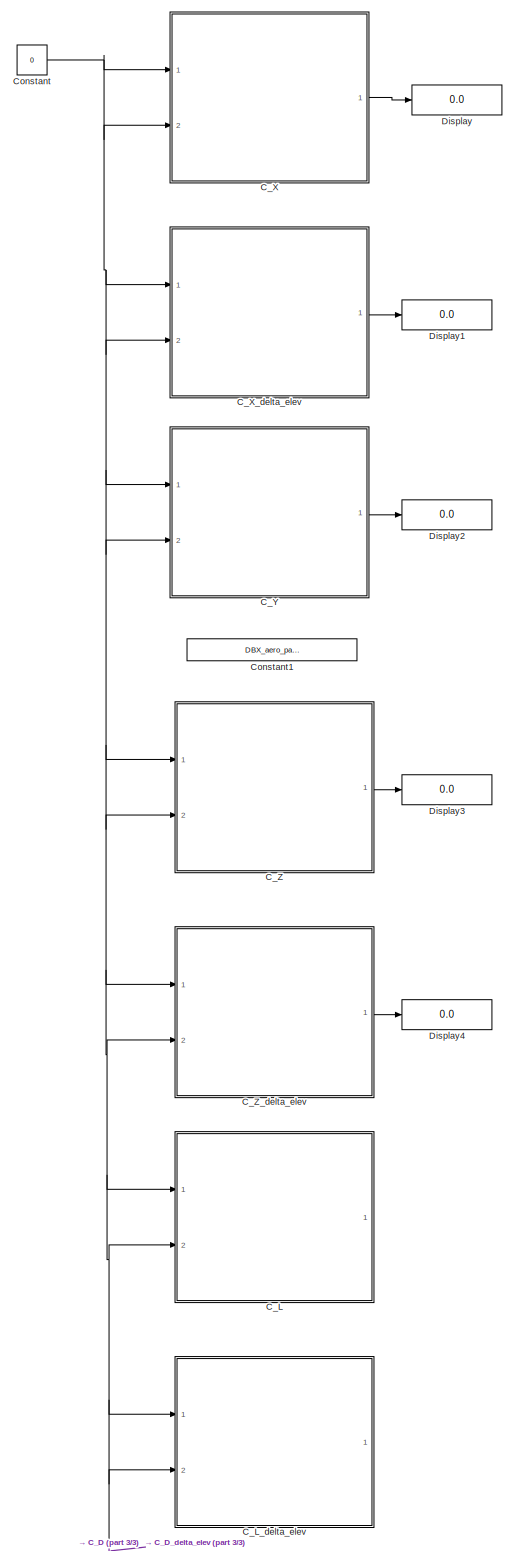
[diagram: root canvas - part 1/3, left side, full height]
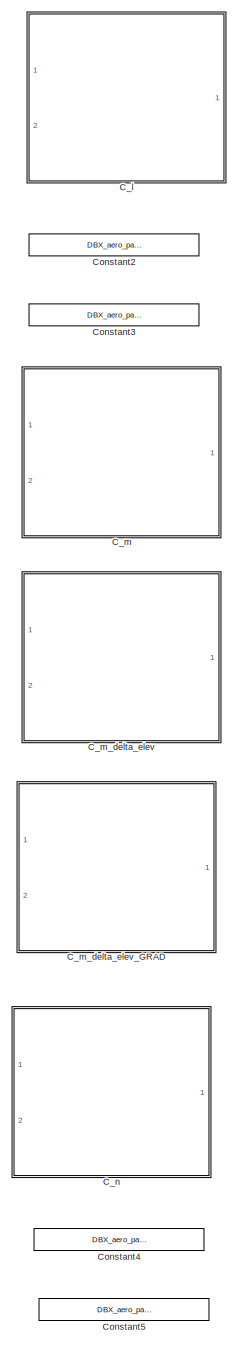
[diagram: root canvas - part 2/3, middle right region]
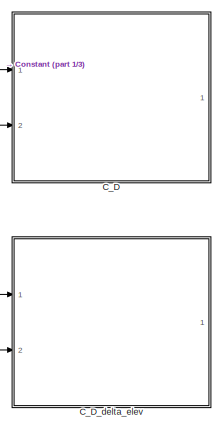
[diagram: root canvas - part 3/3, bottom left region]
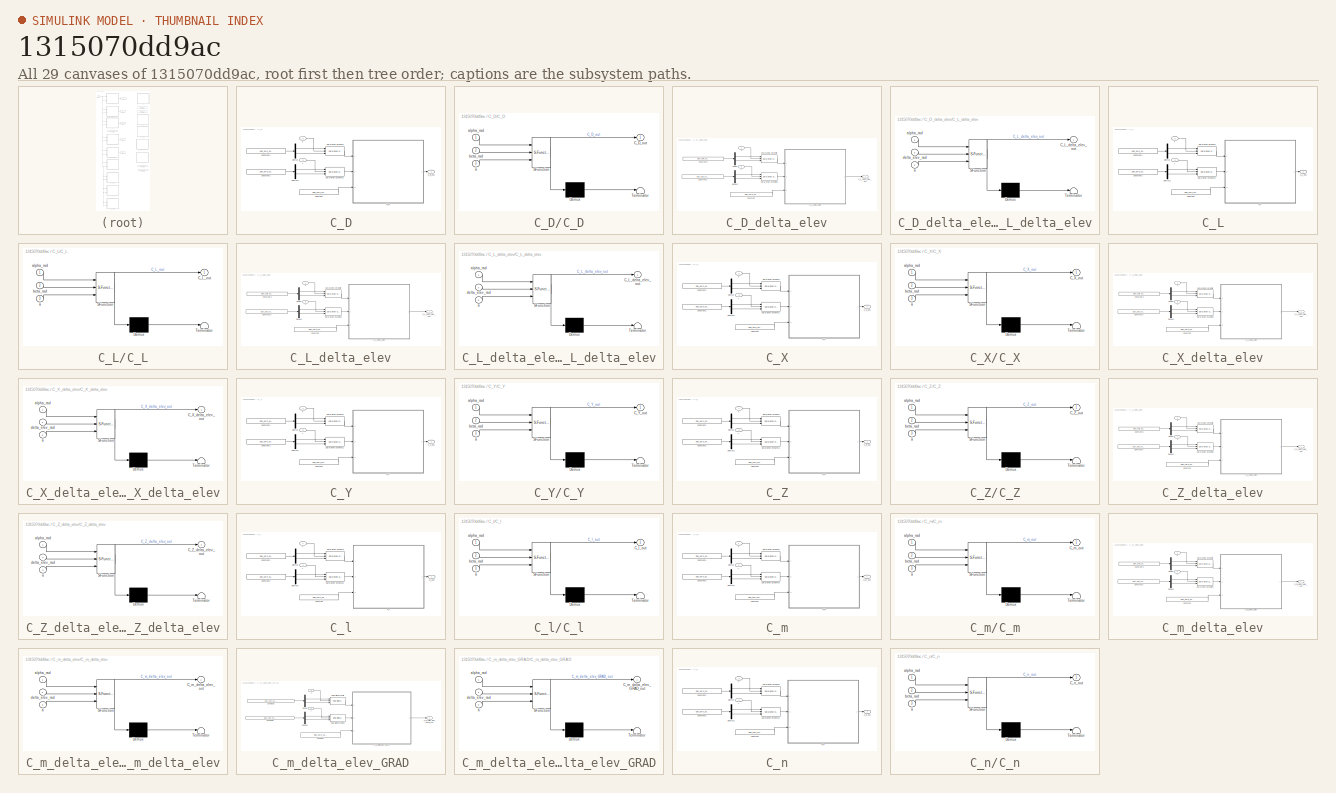
[diagram: thumbnail index - all 29 canvases of the model, root first then tree order]
MODEL slx_1315070dd9ac
KIND model
CONFIG AbsTol = auto
CONFIG FixedStep = auto
CONFIG MaxStep = auto
CONFIG MinStep = auto
CONFIG RelTol = 1e-3
CONFIG SampleTimeConstraint = Unconstrained
CONFIG Solver = ode45
CONFIG SolverMode = Auto
CONFIG SolverName = ode45
CONFIG StartTime = 0.0
CONFIG StopTime = 10.0
BLOCK [SubSystem] C_D
  Ports = [2, 1]
  RequestExecContextInheritance = off
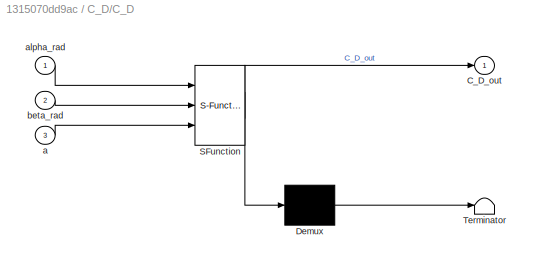
BLOCK [SubSystem] C_D/C_D
  ErrorFcn = Stateflow.Translate.translate
  PermitHierarchicalResolution = ExplicitOnly
  Ports = [3, 1]
  RequestExecContextInheritance = off
  SFBlockType = MATLAB Function
BLOCK [Demux] C_D/C_D/ Demux 
  Outputs = 1
  Ports = [1, 1]
BLOCK [S-Function] C_D/C_D/ SFunction 
  EnableBusSupport = on
  FunctionName = sf_sfun
  PortCounts = [3 2]
  Ports = [3, 2]
  Tag = Stateflow S-Function DBX_aero_parametric 8
BLOCK [Terminator] C_D/C_D/ Terminator 
BLOCK [Outport] C_D/C_D/C_D_out
  IconDisplay = Port number
BLOCK [Inport] C_D/C_D/a
  IconDisplay = Port number
  Port = 3
BLOCK [Inport] C_D/C_D/alpha_rad
  IconDisplay = Port number
BLOCK [Inport] C_D/C_D/beta_rad
  IconDisplay = Port number
  Port = 2
BLOCK [Outport] C_D/C_D_out
  IconDisplay = Port number
BLOCK [Constant] C_D/Constant
  Value = DBX_aero_param.C_D.a
BLOCK [Constant] C_D/Constant1
  Value = DBX_aero_param.C_D.x_lim
BLOCK [Constant] C_D/Constant2
  Value = DBX_aero_param.C_D.y_lim
BLOCK [Demux] C_D/Demux
  DisplayOption = bar
  Outputs = 2
  Ports = [1, 2]
BLOCK [Demux] C_D/Demux1
  DisplayOption = bar
  Outputs = 2
  Ports = [1, 2]
BLOCK [Reference] C_D/Saturation Dynamic  REF=simulink/Discontinuities/Saturation
Dynamic
  DoSatur = off
  LockScale = off
  OutDataType = fixdt(1, 16)
  OutDataTypeStr = Inherit: Same as second input
  OutMax = []
  OutMin = []
  OutScaling = 2^-10
  OutputDataTypeScalingMode = Same as second input
  Ports = [3, 1]
  RndMeth = Floor
  SourceBlock = simulink/Discontinuities/Saturation\nDynamic
  SourceType = Saturation Dynamic
BLOCK [Reference] C_D/Saturation Dynamic1  REF=simulink/Discontinuities/Saturation
Dynamic
  DoSatur = off
  LockScale = off
  OutDataType = fixdt(1, 16)
  OutDataTypeStr = Inherit: Same as second input
  OutMax = []
  OutMin = []
  OutScaling = 2^-10
  OutputDataTypeScalingMode = Same as second input
  Ports = [3, 1]
  RndMeth = Floor
  SourceBlock = simulink/Discontinuities/Saturation\nDynamic
  SourceType = Saturation Dynamic
BLOCK [Inport] C_D/x
  IconDisplay = Port number
BLOCK [Inport] C_D/y
  IconDisplay = Port number
  Port = 2
BLOCK [SubSystem] C_D_delta_elev
  Ports = [2, 1]
  RequestExecContextInheritance = off
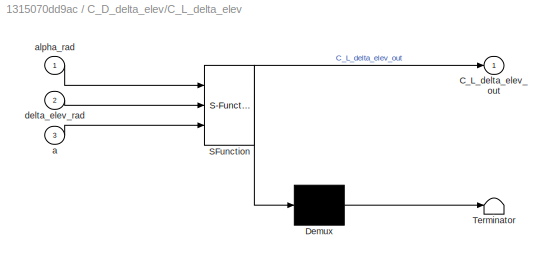
BLOCK [SubSystem] C_D_delta_elev/C_L_delta_elev
  ErrorFcn = Stateflow.Translate.translate
  PermitHierarchicalResolution = ExplicitOnly
  Ports = [3, 1]
  RequestExecContextInheritance = off
  SFBlockType = MATLAB Function
BLOCK [Demux] C_D_delta_elev/C_L_delta_elev/ Demux 
  Outputs = 1
  Ports = [1, 1]
BLOCK [S-Function] C_D_delta_elev/C_L_delta_elev/ SFunction 
  EnableBusSupport = on
  FunctionName = sf_sfun
  PortCounts = [3 2]
  Ports = [3, 2]
  Tag = Stateflow S-Function DBX_aero_parametric 9
BLOCK [Terminator] C_D_delta_elev/C_L_delta_elev/ Terminator 
BLOCK [Outport] C_D_delta_elev/C_L_delta_elev/C_L_delta_elev_out
  IconDisplay = Port number
BLOCK [Inport] C_D_delta_elev/C_L_delta_elev/a
  IconDisplay = Port number
  Port = 3
BLOCK [Inport] C_D_delta_elev/C_L_delta_elev/alpha_rad
  IconDisplay = Port number
BLOCK [Inport] C_D_delta_elev/C_L_delta_elev/delta_elev_rad
  IconDisplay = Port number
  Port = 2
BLOCK [Outport] C_D_delta_elev/C_L_delta_elev_out
  IconDisplay = Port number
BLOCK [Constant] C_D_delta_elev/Constant
  Value = DBX_aero_param.C_L_delta_elev.a
BLOCK [Constant] C_D_delta_elev/Constant1
  Value = DBX_aero_param.C_L_delta_elev.x_lim
BLOCK [Constant] C_D_delta_elev/Constant2
  Value = DBX_aero_param.C_L_delta_elev.y_lim
BLOCK [Demux] C_D_delta_elev/Demux
  DisplayOption = bar
  Outputs = 2
  Ports = [1, 2]
BLOCK [Demux] C_D_delta_elev/Demux1
  DisplayOption = bar
  Outputs = 2
  Ports = [1, 2]
BLOCK [Reference] C_D_delta_elev/Saturation Dynamic  REF=simulink/Discontinuities/Saturation
Dynamic
  DoSatur = off
  LockScale = off
  OutDataType = fixdt(1, 16)
  OutDataTypeStr = Inherit: Same as second input
  OutMax = []
  OutMin = []
  OutScaling = 2^-10
  OutputDataTypeScalingMode = Same as second input
  Ports = [3, 1]
  RndMeth = Floor
  SourceBlock = simulink/Discontinuities/Saturation\nDynamic
  SourceType = Saturation Dynamic
BLOCK [Reference] C_D_delta_elev/Saturation Dynamic1  REF=simulink/Discontinuities/Saturation
Dynamic
  DoSatur = off
  LockScale = off
  OutDataType = fixdt(1, 16)
  OutDataTypeStr = Inherit: Same as second input
  OutMax = []
  OutMin = []
  OutScaling = 2^-10
  OutputDataTypeScalingMode = Same as second input
  Ports = [3, 1]
  RndMeth = Floor
  SourceBlock = simulink/Discontinuities/Saturation\nDynamic
  SourceType = Saturation Dynamic
BLOCK [Inport] C_D_delta_elev/x
  IconDisplay = Port number
BLOCK [Inport] C_D_delta_elev/y
  IconDisplay = Port number
  Port = 2
BLOCK [SubSystem] C_L
  Ports = [2, 1]
  RequestExecContextInheritance = off
BLOCK [SubSystem] C_L/C_L
  ErrorFcn = Stateflow.Translate.translate
  PermitHierarchicalResolution = ExplicitOnly
  Ports = [3, 1]
  RequestExecContextInheritance = off
  SFBlockType = MATLAB Function
BLOCK [Demux] C_L/C_L/ Demux 
  Outputs = 1
  Ports = [1, 1]
BLOCK [S-Function] C_L/C_L/ SFunction 
  EnableBusSupport = on
  FunctionName = sf_sfun
  PortCounts = [3 2]
  Ports = [3, 2]
  Tag = Stateflow S-Function DBX_aero_parametric 6
BLOCK [Terminator] C_L/C_L/ Terminator 
BLOCK [Outport] C_L/C_L/C_L_out
  IconDisplay = Port number
BLOCK [Inport] C_L/C_L/a
  IconDisplay = Port number
  Port = 3
BLOCK [Inport] C_L/C_L/alpha_rad
  IconDisplay = Port number
BLOCK [Inport] C_L/C_L/beta_rad
  IconDisplay = Port number
  Port = 2
BLOCK [Outport] C_L/C_L_out
  IconDisplay = Port number
BLOCK [Constant] C_L/Constant
  Value = DBX_aero_param.C_L.a
BLOCK [Constant] C_L/Constant1
  Value = DBX_aero_param.C_L.x_lim
BLOCK [Constant] C_L/Constant2
  Value = DBX_aero_param.C_L.y_lim
BLOCK [Demux] C_L/Demux
  DisplayOption = bar
  Outputs = 2
  Ports = [1, 2]
BLOCK [Demux] C_L/Demux1
  DisplayOption = bar
  Outputs = 2
  Ports = [1, 2]
BLOCK [Reference] C_L/Saturation Dynamic  REF=simulink/Discontinuities/Saturation
Dynamic
  DoSatur = off
  LockScale = off
  OutDataType = fixdt(1, 16)
  OutDataTypeStr = Inherit: Same as second input
  OutMax = []
  OutMin = []
  OutScaling = 2^-10
  OutputDataTypeScalingMode = Same as second input
  Ports = [3, 1]
  RndMeth = Floor
  SourceBlock = simulink/Discontinuities/Saturation\nDynamic
  SourceType = Saturation Dynamic
BLOCK [Reference] C_L/Saturation Dynamic1  REF=simulink/Discontinuities/Saturation
Dynamic
  DoSatur = off
  LockScale = off
  OutDataType = fixdt(1, 16)
  OutDataTypeStr = Inherit: Same as second input
  OutMax = []
  OutMin = []
  OutScaling = 2^-10
  OutputDataTypeScalingMode = Same as second input
  Ports = [3, 1]
  RndMeth = Floor
  SourceBlock = simulink/Discontinuities/Saturation\nDynamic
  SourceType = Saturation Dynamic
BLOCK [Inport] C_L/x
  IconDisplay = Port number
BLOCK [Inport] C_L/y
  IconDisplay = Port number
  Port = 2
BLOCK [SubSystem] C_L_delta_elev
  Ports = [2, 1]
  RequestExecContextInheritance = off
BLOCK [SubSystem] C_L_delta_elev/C_L_delta_elev
  ErrorFcn = Stateflow.Translate.translate
  PermitHierarchicalResolution = ExplicitOnly
  Ports = [3, 1]
  RequestExecContextInheritance = off
  SFBlockType = MATLAB Function
BLOCK [Demux] C_L_delta_elev/C_L_delta_elev/ Demux 
  Outputs = 1
  Ports = [1, 1]
BLOCK [S-Function] C_L_delta_elev/C_L_delta_elev/ SFunction 
  EnableBusSupport = on
  FunctionName = sf_sfun
  PortCounts = [3 2]
  Ports = [3, 2]
  Tag = Stateflow S-Function DBX_aero_parametric 7
BLOCK [Terminator] C_L_delta_elev/C_L_delta_elev/ Terminator 
BLOCK [Outport] C_L_delta_elev/C_L_delta_elev/C_L_delta_elev_out
  IconDisplay = Port number
BLOCK [Inport] C_L_delta_elev/C_L_delta_elev/a
  IconDisplay = Port number
  Port = 3
BLOCK [Inport] C_L_delta_elev/C_L_delta_elev/alpha_rad
  IconDisplay = Port number
BLOCK [Inport] C_L_delta_elev/C_L_delta_elev/delta_elev_rad
  IconDisplay = Port number
  Port = 2
BLOCK [Outport] C_L_delta_elev/C_L_delta_elev_out
  IconDisplay = Port number
BLOCK [Constant] C_L_delta_elev/Constant
  Value = DBX_aero_param.C_L_delta_elev.a
BLOCK [Constant] C_L_delta_elev/Constant1
  Value = DBX_aero_param.C_L_delta_elev.x_lim
BLOCK [Constant] C_L_delta_elev/Constant2
  Value = DBX_aero_param.C_L_delta_elev.y_lim
BLOCK [Demux] C_L_delta_elev/Demux
  DisplayOption = bar
  Outputs = 2
  Ports = [1, 2]
BLOCK [Demux] C_L_delta_elev/Demux1
  DisplayOption = bar
  Outputs = 2
  Ports = [1, 2]
BLOCK [Reference] C_L_delta_elev/Saturation Dynamic  REF=simulink/Discontinuities/Saturation
Dynamic
  DoSatur = off
  LockScale = off
  OutDataType = fixdt(1, 16)
  OutDataTypeStr = Inherit: Same as second input
  OutMax = []
  OutMin = []
  OutScaling = 2^-10
  OutputDataTypeScalingMode = Same as second input
  Ports = [3, 1]
  RndMeth = Floor
  SourceBlock = simulink/Discontinuities/Saturation\nDynamic
  SourceType = Saturation Dynamic
BLOCK [Reference] C_L_delta_elev/Saturation Dynamic1  REF=simulink/Discontinuities/Saturation
Dynamic
  DoSatur = off
  LockScale = off
  OutDataType = fixdt(1, 16)
  OutDataTypeStr = Inherit: Same as second input
  OutMax = []
  OutMin = []
  OutScaling = 2^-10
  OutputDataTypeScalingMode = Same as second input
  Ports = [3, 1]
  RndMeth = Floor
  SourceBlock = simulink/Discontinuities/Saturation\nDynamic
  SourceType = Saturation Dynamic
BLOCK [Inport] C_L_delta_elev/x
  IconDisplay = Port number
BLOCK [Inport] C_L_delta_elev/y
  IconDisplay = Port number
  Port = 2
BLOCK [SubSystem] C_X
  Ports = [2, 1]
  RequestExecContextInheritance = off
BLOCK [SubSystem] C_X/C_X
  ErrorFcn = Stateflow.Translate.translate
  PermitHierarchicalResolution = ExplicitOnly
  Ports = [3, 1]
  RequestExecContextInheritance = off
  SFBlockType = MATLAB Function
BLOCK [Demux] C_X/C_X/ Demux 
  Outputs = 1
  Ports = [1, 1]
BLOCK [S-Function] C_X/C_X/ SFunction 
  EnableBusSupport = on
  FunctionName = sf_sfun
  PortCounts = [3 2]
  Ports = [3, 2]
  Tag = Stateflow S-Function DBX_aero_parametric 2
BLOCK [Terminator] C_X/C_X/ Terminator 
BLOCK [Outport] C_X/C_X/C_X_out
  IconDisplay = Port number
BLOCK [Inport] C_X/C_X/a
  IconDisplay = Port number
  Port = 3
BLOCK [Inport] C_X/C_X/alpha_rad
  IconDisplay = Port number
BLOCK [Inport] C_X/C_X/beta_rad
  IconDisplay = Port number
  Port = 2
BLOCK [Outport] C_X/C_X_out
  IconDisplay = Port number
BLOCK [Constant] C_X/Constant
  Value = DBX_aero_param.C_X.a
BLOCK [Constant] C_X/Constant1
  Value = DBX_aero_param.C_X.x_lim
BLOCK [Constant] C_X/Constant2
  Value = DBX_aero_param.C_X.y_lim
BLOCK [Demux] C_X/Demux
  DisplayOption = bar
  Outputs = 2
  Ports = [1, 2]
BLOCK [Demux] C_X/Demux1
  DisplayOption = bar
  Outputs = 2
  Ports = [1, 2]
BLOCK [Reference] C_X/Saturation Dynamic  REF=simulink/Discontinuities/Saturation
Dynamic
  DoSatur = off
  LockScale = off
  OutDataType = fixdt(1, 16)
  OutDataTypeStr = Inherit: Same as second input
  OutMax = []
  OutMin = []
  OutScaling = 2^-10
  OutputDataTypeScalingMode = Same as second input
  Ports = [3, 1]
  RndMeth = Floor
  SourceBlock = simulink/Discontinuities/Saturation\nDynamic
  SourceType = Saturation Dynamic
BLOCK [Reference] C_X/Saturation Dynamic1  REF=simulink/Discontinuities/Saturation
Dynamic
  DoSatur = off
  LockScale = off
  OutDataType = fixdt(1, 16)
  OutDataTypeStr = Inherit: Same as second input
  OutMax = []
  OutMin = []
  OutScaling = 2^-10
  OutputDataTypeScalingMode = Same as second input
  Ports = [3, 1]
  RndMeth = Floor
  SourceBlock = simulink/Discontinuities/Saturation\nDynamic
  SourceType = Saturation Dynamic
BLOCK [Inport] C_X/x
  IconDisplay = Port number
BLOCK [Inport] C_X/y
  IconDisplay = Port number
  Port = 2
BLOCK [SubSystem] C_X_delta_elev
  Ports = [2, 1]
  RequestExecContextInheritance = off
BLOCK [SubSystem] C_X_delta_elev/C_X_delta_elev
  ErrorFcn = Stateflow.Translate.translate
  PermitHierarchicalResolution = ExplicitOnly
  Ports = [3, 1]
  RequestExecContextInheritance = off
  SFBlockType = MATLAB Function
BLOCK [Demux] C_X_delta_elev/C_X_delta_elev/ Demux 
  Outputs = 1
  Ports = [1, 1]
BLOCK [S-Function] C_X_delta_elev/C_X_delta_elev/ SFunction 
  EnableBusSupport = on
  FunctionName = sf_sfun
  PortCounts = [3 2]
  Ports = [3, 2]
  Tag = Stateflow S-Function DBX_aero_parametric 1
BLOCK [Terminator] C_X_delta_elev/C_X_delta_elev/ Terminator 
BLOCK [Outport] C_X_delta_elev/C_X_delta_elev/C_X_delta_elev_out
  IconDisplay = Port number
BLOCK [Inport] C_X_delta_elev/C_X_delta_elev/a
  IconDisplay = Port number
  Port = 3
BLOCK [Inport] C_X_delta_elev/C_X_delta_elev/alpha_rad
  IconDisplay = Port number
BLOCK [Inport] C_X_delta_elev/C_X_delta_elev/delta_elev_rad
  IconDisplay = Port number
  Port = 2
BLOCK [Outport] C_X_delta_elev/C_X_delta_elev_out
  IconDisplay = Port number
BLOCK [Constant] C_X_delta_elev/Constant
  Value = DBX_aero_param.C_X_delta_elev.a
BLOCK [Constant] C_X_delta_elev/Constant1
  Value = DBX_aero_param.C_X_delta_elev.x_lim
BLOCK [Constant] C_X_delta_elev/Constant2
  Value = DBX_aero_param.C_X_delta_elev.y_lim
BLOCK [Demux] C_X_delta_elev/Demux
  DisplayOption = bar
  Outputs = 2
  Ports = [1, 2]
BLOCK [Demux] C_X_delta_elev/Demux1
  DisplayOption = bar
  Outputs = 2
  Ports = [1, 2]
BLOCK [Reference] C_X_delta_elev/Saturation Dynamic  REF=simulink/Discontinuities/Saturation
Dynamic
  DoSatur = off
  LockScale = off
  OutDataType = fixdt(1, 16)
  OutDataTypeStr = Inherit: Same as second input
  OutMax = []
  OutMin = []
  OutScaling = 2^-10
  OutputDataTypeScalingMode = Same as second input
  Ports = [3, 1]
  RndMeth = Floor
  SourceBlock = simulink/Discontinuities/Saturation\nDynamic
  SourceType = Saturation Dynamic
BLOCK [Reference] C_X_delta_elev/Saturation Dynamic1  REF=simulink/Discontinuities/Saturation
Dynamic
  DoSatur = off
  LockScale = off
  OutDataType = fixdt(1, 16)
  OutDataTypeStr = Inherit: Same as second input
  OutMax = []
  OutMin = []
  OutScaling = 2^-10
  OutputDataTypeScalingMode = Same as second input
  Ports = [3, 1]
  RndMeth = Floor
  SourceBlock = simulink/Discontinuities/Saturation\nDynamic
  SourceType = Saturation Dynamic
BLOCK [Inport] C_X_delta_elev/x
  IconDisplay = Port number
BLOCK [Inport] C_X_delta_elev/y
  IconDisplay = Port number
  Port = 2
BLOCK [SubSystem] C_Y
  Ports = [2, 1]
  RequestExecContextInheritance = off
BLOCK [SubSystem] C_Y/C_Y
  ErrorFcn = Stateflow.Translate.translate
  PermitHierarchicalResolution = ExplicitOnly
  Ports = [3, 1]
  RequestExecContextInheritance = off
  SFBlockType = MATLAB Function
BLOCK [Demux] C_Y/C_Y/ Demux 
  Outputs = 1
  Ports = [1, 1]
BLOCK [S-Function] C_Y/C_Y/ SFunction 
  EnableBusSupport = on
  FunctionName = sf_sfun
  PortCounts = [3 2]
  Ports = [3, 2]
  Tag = Stateflow S-Function DBX_aero_parametric 3
BLOCK [Terminator] C_Y/C_Y/ Terminator 
BLOCK [Outport] C_Y/C_Y/C_Y_out
  IconDisplay = Port number
BLOCK [Inport] C_Y/C_Y/a
  IconDisplay = Port number
  Port = 3
BLOCK [Inport] C_Y/C_Y/alpha_rad
  IconDisplay = Port number
BLOCK [Inport] C_Y/C_Y/beta_rad
  IconDisplay = Port number
  Port = 2
BLOCK [Outport] C_Y/C_Y_out
  IconDisplay = Port number
BLOCK [Constant] C_Y/Constant
  Value = DBX_aero_param.C_Y.a
BLOCK [Constant] C_Y/Constant1
  Value = DBX_aero_param.C_Y.x_lim
BLOCK [Constant] C_Y/Constant2
  Value = DBX_aero_param.C_Y.y_lim
BLOCK [Demux] C_Y/Demux
  DisplayOption = bar
  Outputs = 2
  Ports = [1, 2]
BLOCK [Demux] C_Y/Demux1
  DisplayOption = bar
  Outputs = 2
  Ports = [1, 2]
BLOCK [Reference] C_Y/Saturation Dynamic  REF=simulink/Discontinuities/Saturation
Dynamic
  DoSatur = off
  LockScale = off
  OutDataType = fixdt(1, 16)
  OutDataTypeStr = Inherit: Same as second input
  OutMax = []
  OutMin = []
  OutScaling = 2^-10
  OutputDataTypeScalingMode = Same as second input
  Ports = [3, 1]
  RndMeth = Floor
  SourceBlock = simulink/Discontinuities/Saturation\nDynamic
  SourceType = Saturation Dynamic
BLOCK [Reference] C_Y/Saturation Dynamic1  REF=simulink/Discontinuities/Saturation
Dynamic
  DoSatur = off
  LockScale = off
  OutDataType = fixdt(1, 16)
  OutDataTypeStr = Inherit: Same as second input
  OutMax = []
  OutMin = []
  OutScaling = 2^-10
  OutputDataTypeScalingMode = Same as second input
  Ports = [3, 1]
  RndMeth = Floor
  SourceBlock = simulink/Discontinuities/Saturation\nDynamic
  SourceType = Saturation Dynamic
BLOCK [Inport] C_Y/x
  IconDisplay = Port number
BLOCK [Inport] C_Y/y
  IconDisplay = Port number
  Port = 2
BLOCK [SubSystem] C_Z
  Ports = [2, 1]
  RequestExecContextInheritance = off
BLOCK [SubSystem] C_Z/C_Z
  ErrorFcn = Stateflow.Translate.translate
  PermitHierarchicalResolution = ExplicitOnly
  Ports = [3, 1]
  RequestExecContextInheritance = off
  SFBlockType = MATLAB Function
BLOCK [Demux] C_Z/C_Z/ Demux 
  Outputs = 1
  Ports = [1, 1]
BLOCK [S-Function] C_Z/C_Z/ SFunction 
  EnableBusSupport = on
  FunctionName = sf_sfun
  PortCounts = [3 2]
  Ports = [3, 2]
  Tag = Stateflow S-Function DBX_aero_parametric 4
BLOCK [Terminator] C_Z/C_Z/ Terminator 
BLOCK [Outport] C_Z/C_Z/C_Z_out
  IconDisplay = Port number
BLOCK [Inport] C_Z/C_Z/a
  IconDisplay = Port number
  Port = 3
BLOCK [Inport] C_Z/C_Z/alpha_rad
  IconDisplay = Port number
BLOCK [Inport] C_Z/C_Z/beta_rad
  IconDisplay = Port number
  Port = 2
BLOCK [Outport] C_Z/C_Z_out
  IconDisplay = Port number
BLOCK [Constant] C_Z/Constant
  Value = DBX_aero_param.C_Z.a
BLOCK [Constant] C_Z/Constant1
  Value = DBX_aero_param.C_Z.x_lim
BLOCK [Constant] C_Z/Constant2
  Value = DBX_aero_param.C_Z.y_lim
BLOCK [Demux] C_Z/Demux
  DisplayOption = bar
  Outputs = 2
  Ports = [1, 2]
BLOCK [Demux] C_Z/Demux1
  DisplayOption = bar
  Outputs = 2
  Ports = [1, 2]
BLOCK [Reference] C_Z/Saturation Dynamic  REF=simulink/Discontinuities/Saturation
Dynamic
  DoSatur = off
  LockScale = off
  OutDataType = fixdt(1, 16)
  OutDataTypeStr = Inherit: Same as second input
  OutMax = []
  OutMin = []
  OutScaling = 2^-10
  OutputDataTypeScalingMode = Same as second input
  Ports = [3, 1]
  RndMeth = Floor
  SourceBlock = simulink/Discontinuities/Saturation\nDynamic
  SourceType = Saturation Dynamic
BLOCK [Reference] C_Z/Saturation Dynamic1  REF=simulink/Discontinuities/Saturation
Dynamic
  DoSatur = off
  LockScale = off
  OutDataType = fixdt(1, 16)
  OutDataTypeStr = Inherit: Same as second input
  OutMax = []
  OutMin = []
  OutScaling = 2^-10
  OutputDataTypeScalingMode = Same as second input
  Ports = [3, 1]
  RndMeth = Floor
  SourceBlock = simulink/Discontinuities/Saturation\nDynamic
  SourceType = Saturation Dynamic
BLOCK [Inport] C_Z/x
  IconDisplay = Port number
BLOCK [Inport] C_Z/y
  IconDisplay = Port number
  Port = 2
BLOCK [SubSystem] C_Z_delta_elev
  Ports = [2, 1]
  RequestExecContextInheritance = off
BLOCK [SubSystem] C_Z_delta_elev/C_Z_delta_elev
  ErrorFcn = Stateflow.Translate.translate
  PermitHierarchicalResolution = ExplicitOnly
  Ports = [3, 1]
  RequestExecContextInheritance = off
  SFBlockType = MATLAB Function
BLOCK [Demux] C_Z_delta_elev/C_Z_delta_elev/ Demux 
  Outputs = 1
  Ports = [1, 1]
BLOCK [S-Function] C_Z_delta_elev/C_Z_delta_elev/ SFunction 
  EnableBusSupport = on
  FunctionName = sf_sfun
  PortCounts = [3 2]
  Ports = [3, 2]
  Tag = Stateflow S-Function DBX_aero_parametric 5
BLOCK [Terminator] C_Z_delta_elev/C_Z_delta_elev/ Terminator 
BLOCK [Outport] C_Z_delta_elev/C_Z_delta_elev/C_Z_delta_elev_out
  IconDisplay = Port number
BLOCK [Inport] C_Z_delta_elev/C_Z_delta_elev/a
  IconDisplay = Port number
  Port = 3
BLOCK [Inport] C_Z_delta_elev/C_Z_delta_elev/alpha_rad
  IconDisplay = Port number
BLOCK [Inport] C_Z_delta_elev/C_Z_delta_elev/delta_elev_rad
  IconDisplay = Port number
  Port = 2
BLOCK [Outport] C_Z_delta_elev/C_Z_delta_elev_out
  IconDisplay = Port number
BLOCK [Constant] C_Z_delta_elev/Constant
  Value = DBX_aero_param.C_Z_delta_elev.a
BLOCK [Constant] C_Z_delta_elev/Constant1
  Value = DBX_aero_param.C_Z_delta_elev.x_lim
BLOCK [Constant] C_Z_delta_elev/Constant2
  Value = DBX_aero_param.C_Z_delta_elev.y_lim
BLOCK [Demux] C_Z_delta_elev/Demux
  DisplayOption = bar
  Outputs = 2
  Ports = [1, 2]
BLOCK [Demux] C_Z_delta_elev/Demux1
  DisplayOption = bar
  Outputs = 2
  Ports = [1, 2]
BLOCK [Reference] C_Z_delta_elev/Saturation Dynamic  REF=simulink/Discontinuities/Saturation
Dynamic
  DoSatur = off
  LockScale = off
  OutDataType = fixdt(1, 16)
  OutDataTypeStr = Inherit: Same as second input
  OutMax = []
  OutMin = []
  OutScaling = 2^-10
  OutputDataTypeScalingMode = Same as second input
  Ports = [3, 1]
  RndMeth = Floor
  SourceBlock = simulink/Discontinuities/Saturation\nDynamic
  SourceType = Saturation Dynamic
BLOCK [Reference] C_Z_delta_elev/Saturation Dynamic1  REF=simulink/Discontinuities/Saturation
Dynamic
  DoSatur = off
  LockScale = off
  OutDataType = fixdt(1, 16)
  OutDataTypeStr = Inherit: Same as second input
  OutMax = []
  OutMin = []
  OutScaling = 2^-10
  OutputDataTypeScalingMode = Same as second input
  Ports = [3, 1]
  RndMeth = Floor
  SourceBlock = simulink/Discontinuities/Saturation\nDynamic
  SourceType = Saturation Dynamic
BLOCK [Inport] C_Z_delta_elev/x
  IconDisplay = Port number
BLOCK [Inport] C_Z_delta_elev/y
  IconDisplay = Port number
  Port = 2
BLOCK [SubSystem] C_l
  Ports = [2, 1]
  RequestExecContextInheritance = off
BLOCK [SubSystem] C_l/C_l
  ErrorFcn = Stateflow.Translate.translate
  PermitHierarchicalResolution = ExplicitOnly
  Ports = [3, 1]
  RequestExecContextInheritance = off
  SFBlockType = MATLAB Function
BLOCK [Demux] C_l/C_l/ Demux 
  Outputs = 1
  Ports = [1, 1]
BLOCK [S-Function] C_l/C_l/ SFunction 
  EnableBusSupport = on
  FunctionName = sf_sfun
  PortCounts = [3 2]
  Ports = [3, 2]
  Tag = Stateflow S-Function DBX_aero_parametric 10
BLOCK [Terminator] C_l/C_l/ Terminator 
BLOCK [Outport] C_l/C_l/C_l_out
  IconDisplay = Port number
BLOCK [Inport] C_l/C_l/a
  IconDisplay = Port number
  Port = 3
BLOCK [Inport] C_l/C_l/alpha_rad
  IconDisplay = Port number
BLOCK [Inport] C_l/C_l/beta_rad
  IconDisplay = Port number
  Port = 2
BLOCK [Outport] C_l/C_l_out
  IconDisplay = Port number
BLOCK [Constant] C_l/Constant
  Value = DBX_aero_param.C_l.a
BLOCK [Constant] C_l/Constant1
  Value = DBX_aero_param.C_l.x_lim
BLOCK [Constant] C_l/Constant2
  Value = DBX_aero_param.C_l.y_lim
BLOCK [Demux] C_l/Demux
  DisplayOption = bar
  Outputs = 2
  Ports = [1, 2]
BLOCK [Demux] C_l/Demux1
  DisplayOption = bar
  Outputs = 2
  Ports = [1, 2]
BLOCK [Reference] C_l/Saturation Dynamic  REF=simulink/Discontinuities/Saturation
Dynamic
  DoSatur = off
  LockScale = off
  OutDataType = fixdt(1, 16)
  OutDataTypeStr = Inherit: Same as second input
  OutMax = []
  OutMin = []
  OutScaling = 2^-10
  OutputDataTypeScalingMode = Same as second input
  Ports = [3, 1]
  RndMeth = Floor
  SourceBlock = simulink/Discontinuities/Saturation\nDynamic
  SourceType = Saturation Dynamic
BLOCK [Reference] C_l/Saturation Dynamic1  REF=simulink/Discontinuities/Saturation
Dynamic
  DoSatur = off
  LockScale = off
  OutDataType = fixdt(1, 16)
  OutDataTypeStr = Inherit: Same as second input
  OutMax = []
  OutMin = []
  OutScaling = 2^-10
  OutputDataTypeScalingMode = Same as second input
  Ports = [3, 1]
  RndMeth = Floor
  SourceBlock = simulink/Discontinuities/Saturation\nDynamic
  SourceType = Saturation Dynamic
BLOCK [Inport] C_l/x
  IconDisplay = Port number
BLOCK [Inport] C_l/y
  IconDisplay = Port number
  Port = 2
BLOCK [SubSystem] C_m
  Ports = [2, 1]
  RequestExecContextInheritance = off
BLOCK [SubSystem] C_m/C_m
  ErrorFcn = Stateflow.Translate.translate
  PermitHierarchicalResolution = ExplicitOnly
  Ports = [3, 1]
  RequestExecContextInheritance = off
  SFBlockType = MATLAB Function
BLOCK [Demux] C_m/C_m/ Demux 
  Outputs = 1
  Ports = [1, 1]
BLOCK [S-Function] C_m/C_m/ SFunction 
  EnableBusSupport = on
  FunctionName = sf_sfun
  PortCounts = [3 2]
  Ports = [3, 2]
  Tag = Stateflow S-Function DBX_aero_parametric 11
BLOCK [Terminator] C_m/C_m/ Terminator 
BLOCK [Outport] C_m/C_m/C_m_out
  IconDisplay = Port number
BLOCK [Inport] C_m/C_m/a
  IconDisplay = Port number
  Port = 3
BLOCK [Inport] C_m/C_m/alpha_rad
  IconDisplay = Port number
BLOCK [Inport] C_m/C_m/beta_rad
  IconDisplay = Port number
  Port = 2
BLOCK [Outport] C_m/C_m_out
  IconDisplay = Port number
BLOCK [Constant] C_m/Constant
  Value = DBX_aero_param.C_m.a
BLOCK [Constant] C_m/Constant1
  Value = DBX_aero_param.C_m.x_lim
BLOCK [Constant] C_m/Constant2
  Value = DBX_aero_param.C_m.y_lim
BLOCK [Demux] C_m/Demux
  DisplayOption = bar
  Outputs = 2
  Ports = [1, 2]
BLOCK [Demux] C_m/Demux1
  DisplayOption = bar
  Outputs = 2
  Ports = [1, 2]
BLOCK [Reference] C_m/Saturation Dynamic  REF=simulink/Discontinuities/Saturation
Dynamic
  DoSatur = off
  LockScale = off
  OutDataType = fixdt(1, 16)
  OutDataTypeStr = Inherit: Same as second input
  OutMax = []
  OutMin = []
  OutScaling = 2^-10
  OutputDataTypeScalingMode = Same as second input
  Ports = [3, 1]
  RndMeth = Floor
  SourceBlock = simulink/Discontinuities/Saturation\nDynamic
  SourceType = Saturation Dynamic
BLOCK [Reference] C_m/Saturation Dynamic1  REF=simulink/Discontinuities/Saturation
Dynamic
  DoSatur = off
  LockScale = off
  OutDataType = fixdt(1, 16)
  OutDataTypeStr = Inherit: Same as second input
  OutMax = []
  OutMin = []
  OutScaling = 2^-10
  OutputDataTypeScalingMode = Same as second input
  Ports = [3, 1]
  RndMeth = Floor
  SourceBlock = simulink/Discontinuities/Saturation\nDynamic
  SourceType = Saturation Dynamic
BLOCK [Inport] C_m/x
  IconDisplay = Port number
BLOCK [Inport] C_m/y
  IconDisplay = Port number
  Port = 2
BLOCK [SubSystem] C_m_delta_elev
  Ports = [2, 1]
  RequestExecContextInheritance = off
BLOCK [SubSystem] C_m_delta_elev/C_m_delta_elev
  ErrorFcn = Stateflow.Translate.translate
  PermitHierarchicalResolution = ExplicitOnly
  Ports = [3, 1]
  RequestExecContextInheritance = off
  SFBlockType = MATLAB Function
BLOCK [Demux] C_m_delta_elev/C_m_delta_elev/ Demux 
  Outputs = 1
  Ports = [1, 1]
BLOCK [S-Function] C_m_delta_elev/C_m_delta_elev/ SFunction 
  EnableBusSupport = on
  FunctionName = sf_sfun
  PortCounts = [3 2]
  Ports = [3, 2]
  Tag = Stateflow S-Function DBX_aero_parametric 12
BLOCK [Terminator] C_m_delta_elev/C_m_delta_elev/ Terminator 
BLOCK [Outport] C_m_delta_elev/C_m_delta_elev/C_m_delta_elev_out
  IconDisplay = Port number
BLOCK [Inport] C_m_delta_elev/C_m_delta_elev/a
  IconDisplay = Port number
  Port = 3
BLOCK [Inport] C_m_delta_elev/C_m_delta_elev/alpha_rad
  IconDisplay = Port number
BLOCK [Inport] C_m_delta_elev/C_m_delta_elev/delta_elev_rad
  IconDisplay = Port number
  Port = 2
BLOCK [Outport] C_m_delta_elev/C_m_delta_elev_out
  IconDisplay = Port number
BLOCK [Constant] C_m_delta_elev/Constant
  Value = DBX_aero_param.C_m_delta_elev.a
BLOCK [Constant] C_m_delta_elev/Constant1
  Value = DBX_aero_param.C_m_delta_elev.x_lim
BLOCK [Constant] C_m_delta_elev/Constant2
  Value = DBX_aero_param.C_m_delta_elev.y_lim
BLOCK [Demux] C_m_delta_elev/Demux
  DisplayOption = bar
  Outputs = 2
  Ports = [1, 2]
BLOCK [Demux] C_m_delta_elev/Demux1
  DisplayOption = bar
  Outputs = 2
  Ports = [1, 2]
BLOCK [Reference] C_m_delta_elev/Saturation Dynamic  REF=simulink/Discontinuities/Saturation
Dynamic
  DoSatur = off
  LockScale = off
  OutDataType = fixdt(1, 16)
  OutDataTypeStr = Inherit: Same as second input
  OutMax = []
  OutMin = []
  OutScaling = 2^-10
  OutputDataTypeScalingMode = Same as second input
  Ports = [3, 1]
  RndMeth = Floor
  SourceBlock = simulink/Discontinuities/Saturation\nDynamic
  SourceType = Saturation Dynamic
BLOCK [Reference] C_m_delta_elev/Saturation Dynamic1  REF=simulink/Discontinuities/Saturation
Dynamic
  DoSatur = off
  LockScale = off
  OutDataType = fixdt(1, 16)
  OutDataTypeStr = Inherit: Same as second input
  OutMax = []
  OutMin = []
  OutScaling = 2^-10
  OutputDataTypeScalingMode = Same as second input
  Ports = [3, 1]
  RndMeth = Floor
  SourceBlock = simulink/Discontinuities/Saturation\nDynamic
  SourceType = Saturation Dynamic
BLOCK [Inport] C_m_delta_elev/x
  IconDisplay = Port number
BLOCK [Inport] C_m_delta_elev/y
  IconDisplay = Port number
  Port = 2
BLOCK [SubSystem] C_m_delta_elev_GRAD
  Ports = [2, 1]
  RequestExecContextInheritance = off
BLOCK [SubSystem] C_m_delta_elev_GRAD/C_m_delta_elev_GRAD
  ErrorFcn = Stateflow.Translate.translate
  PermitHierarchicalResolution = ExplicitOnly
  Ports = [3, 1]
  RequestExecContextInheritance = off
  SFBlockType = MATLAB Function
BLOCK [Demux] C_m_delta_elev_GRAD/C_m_delta_elev_GRAD/ Demux 
  Outputs = 1
  Ports = [1, 1]
BLOCK [S-Function] C_m_delta_elev_GRAD/C_m_delta_elev_GRAD/ SFunction 
  EnableBusSupport = on
  FunctionName = sf_sfun
  PortCounts = [3 2]
  Ports = [3, 2]
  Tag = Stateflow S-Function DBX_aero_parametric 13
BLOCK [Terminator] C_m_delta_elev_GRAD/C_m_delta_elev_GRAD/ Terminator 
BLOCK [Outport] C_m_delta_elev_GRAD/C_m_delta_elev_GRAD/C_m_delta_elev_GRAD_out
  IconDisplay = Port number
BLOCK [Inport] C_m_delta_elev_GRAD/C_m_delta_elev_GRAD/a
  IconDisplay = Port number
  Port = 3
BLOCK [Inport] C_m_delta_elev_GRAD/C_m_delta_elev_GRAD/alpha_rad
  IconDisplay = Port number
BLOCK [Inport] C_m_delta_elev_GRAD/C_m_delta_elev_GRAD/delta_elev_rad
  IconDisplay = Port number
  Port = 2
BLOCK [Outport] C_m_delta_elev_GRAD/C_m_delta_elev_GRAD_out
  IconDisplay = Port number
BLOCK [Constant] C_m_delta_elev_GRAD/Constant
  Value = DBX_aero_param.C_m_delta_elev_GRAD.a
BLOCK [Constant] C_m_delta_elev_GRAD/Constant1
  Value = DBX_aero_param.C_m_delta_elev_GRAD.x_lim
BLOCK [Constant] C_m_delta_elev_GRAD/Constant2
  Value = DBX_aero_param.C_m_delta_elev_GRAD.y_lim
BLOCK [Demux] C_m_delta_elev_GRAD/Demux
  DisplayOption = bar
  Outputs = 2
  Ports = [1, 2]
BLOCK [Demux] C_m_delta_elev_GRAD/Demux1
  DisplayOption = bar
  Outputs = 2
  Ports = [1, 2]
BLOCK [Reference] C_m_delta_elev_GRAD/Saturation Dynamic  REF=simulink/Discontinuities/Saturation
Dynamic
  DoSatur = off
  LockScale = off
  OutDataType = fixdt(1, 16)
  OutDataTypeStr = Inherit: Same as second input
  OutMax = []
  OutMin = []
  OutScaling = 2^-10
  OutputDataTypeScalingMode = Same as second input
  Ports = [3, 1]
  RndMeth = Floor
  SourceBlock = simulink/Discontinuities/Saturation\nDynamic
  SourceType = Saturation Dynamic
BLOCK [Reference] C_m_delta_elev_GRAD/Saturation Dynamic1  REF=simulink/Discontinuities/Saturation
Dynamic
  DoSatur = off
  LockScale = off
  OutDataType = fixdt(1, 16)
  OutDataTypeStr = Inherit: Same as second input
  OutMax = []
  OutMin = []
  OutScaling = 2^-10
  OutputDataTypeScalingMode = Same as second input
  Ports = [3, 1]
  RndMeth = Floor
  SourceBlock = simulink/Discontinuities/Saturation\nDynamic
  SourceType = Saturation Dynamic
BLOCK [Inport] C_m_delta_elev_GRAD/x
  IconDisplay = Port number
BLOCK [Inport] C_m_delta_elev_GRAD/y
  IconDisplay = Port number
  Port = 2
BLOCK [SubSystem] C_n
  Ports = [2, 1]
  RequestExecContextInheritance = off
BLOCK [SubSystem] C_n/C_n
  ErrorFcn = Stateflow.Translate.translate
  PermitHierarchicalResolution = ExplicitOnly
  Ports = [3, 1]
  RequestExecContextInheritance = off
  SFBlockType = MATLAB Function
BLOCK [Demux] C_n/C_n/ Demux 
  Outputs = 1
  Ports = [1, 1]
BLOCK [S-Function] C_n/C_n/ SFunction 
  EnableBusSupport = on
  FunctionName = sf_sfun
  PortCounts = [3 2]
  Ports = [3, 2]
  Tag = Stateflow S-Function DBX_aero_parametric 14
BLOCK [Terminator] C_n/C_n/ Terminator 
BLOCK [Outport] C_n/C_n/C_n_out
  IconDisplay = Port number
BLOCK [Inport] C_n/C_n/a
  IconDisplay = Port number
  Port = 3
BLOCK [Inport] C_n/C_n/alpha_rad
  IconDisplay = Port number
BLOCK [Inport] C_n/C_n/beta_rad
  IconDisplay = Port number
  Port = 2
BLOCK [Outport] C_n/C_n_out
  IconDisplay = Port number
BLOCK [Constant] C_n/Constant
  Value = DBX_aero_param.C_n.a
BLOCK [Constant] C_n/Constant1
  Value = DBX_aero_param.C_n.x_lim
BLOCK [Constant] C_n/Constant2
  Value = DBX_aero_param.C_n.y_lim
BLOCK [Demux] C_n/Demux
  DisplayOption = bar
  Outputs = 2
  Ports = [1, 2]
BLOCK [Demux] C_n/Demux1
  DisplayOption = bar
  Outputs = 2
  Ports = [1, 2]
BLOCK [Reference] C_n/Saturation Dynamic  REF=simulink/Discontinuities/Saturation
Dynamic
  DoSatur = off
  LockScale = off
  OutDataType = fixdt(1, 16)
  OutDataTypeStr = Inherit: Same as second input
  OutMax = []
  OutMin = []
  OutScaling = 2^-10
  OutputDataTypeScalingMode = Same as second input
  Ports = [3, 1]
  RndMeth = Floor
  SourceBlock = simulink/Discontinuities/Saturation\nDynamic
  SourceType = Saturation Dynamic
BLOCK [Reference] C_n/Saturation Dynamic1  REF=simulink/Discontinuities/Saturation
Dynamic
  DoSatur = off
  LockScale = off
  OutDataType = fixdt(1, 16)
  OutDataTypeStr = Inherit: Same as second input
  OutMax = []
  OutMin = []
  OutScaling = 2^-10
  OutputDataTypeScalingMode = Same as second input
  Ports = [3, 1]
  RndMeth = Floor
  SourceBlock = simulink/Discontinuities/Saturation\nDynamic
  SourceType = Saturation Dynamic
BLOCK [Inport] C_n/x
  IconDisplay = Port number
BLOCK [Inport] C_n/y
  IconDisplay = Port number
  Port = 2
BLOCK [Constant] Constant
  Value = 0
BLOCK [Constant] Constant1
  Value = DBX_aero_param.C_Y_delta_rud
BLOCK [Constant] Constant2
  Value = DBX_aero_param.C_l_delta_rud
BLOCK [Constant] Constant3
  Value = DBX_aero_param.C_l_delta_ale
BLOCK [Constant] Constant4
  Value = DBX_aero_param.C_n_delta_rud
BLOCK [Constant] Constant5
  Value = DBX_aero_param.C_n_delta_ale
BLOCK [Display] Display
  Decimation = 1
  Ports = [1]
BLOCK [Display] Display1
  Decimation = 1
  Ports = [1]
BLOCK [Display] Display2
  Decimation = 1
  Ports = [1]
BLOCK [Display] Display3
  Decimation = 1
  Ports = [1]
BLOCK [Display] Display4
  Decimation = 1
  Ports = [1]
LINE C_D/C_D:1 -> C_D/C_D_out:1
LINE C_D/Constant1:1 -> C_D/Demux:1
LINE C_D/Constant2:1 -> C_D/Demux1:1
LINE C_D/Constant:1 -> C_D/C_D:3
LINE C_D/Demux1:1 -> C_D/Saturation Dynamic1:1
LINE C_D/Demux1:2 -> C_D/Saturation Dynamic1:3
LINE C_D/Demux:1 -> C_D/Saturation Dynamic:1
LINE C_D/Demux:2 -> C_D/Saturation Dynamic:3
LINE C_D/Saturation Dynamic1:1 -> C_D/C_D:2
LINE C_D/Saturation Dynamic:1 -> C_D/C_D:1
LINE C_D/x:1 -> C_D/Saturation Dynamic:2
LINE C_D/y:1 -> C_D/Saturation Dynamic1:2
LINE C_D_delta_elev/C_L_delta_elev:1 -> C_D_delta_elev/C_L_delta_elev_out:1
LINE C_D_delta_elev/Constant1:1 -> C_D_delta_elev/Demux:1
LINE C_D_delta_elev/Constant2:1 -> C_D_delta_elev/Demux1:1
LINE C_D_delta_elev/Constant:1 -> C_D_delta_elev/C_L_delta_elev:3
LINE C_D_delta_elev/Demux1:1 -> C_D_delta_elev/Saturation Dynamic1:1
LINE C_D_delta_elev/Demux1:2 -> C_D_delta_elev/Saturation Dynamic1:3
LINE C_D_delta_elev/Demux:1 -> C_D_delta_elev/Saturation Dynamic:1
LINE C_D_delta_elev/Demux:2 -> C_D_delta_elev/Saturation Dynamic:3
LINE C_D_delta_elev/Saturation Dynamic1:1 -> C_D_delta_elev/C_L_delta_elev:2
LINE C_D_delta_elev/Saturation Dynamic:1 -> C_D_delta_elev/C_L_delta_elev:1
LINE C_D_delta_elev/x:1 -> C_D_delta_elev/Saturation Dynamic:2
LINE C_D_delta_elev/y:1 -> C_D_delta_elev/Saturation Dynamic1:2
LINE C_L/C_L:1 -> C_L/C_L_out:1
LINE C_L/Constant1:1 -> C_L/Demux:1
LINE C_L/Constant2:1 -> C_L/Demux1:1
LINE C_L/Constant:1 -> C_L/C_L:3
LINE C_L/Demux1:1 -> C_L/Saturation Dynamic1:1
LINE C_L/Demux1:2 -> C_L/Saturation Dynamic1:3
LINE C_L/Demux:1 -> C_L/Saturation Dynamic:1
LINE C_L/Demux:2 -> C_L/Saturation Dynamic:3
LINE C_L/Saturation Dynamic1:1 -> C_L/C_L:2
LINE C_L/Saturation Dynamic:1 -> C_L/C_L:1
LINE C_L/x:1 -> C_L/Saturation Dynamic:2
LINE C_L/y:1 -> C_L/Saturation Dynamic1:2
LINE C_L_delta_elev/C_L_delta_elev:1 -> C_L_delta_elev/C_L_delta_elev_out:1
LINE C_L_delta_elev/Constant1:1 -> C_L_delta_elev/Demux:1
LINE C_L_delta_elev/Constant2:1 -> C_L_delta_elev/Demux1:1
LINE C_L_delta_elev/Constant:1 -> C_L_delta_elev/C_L_delta_elev:3
LINE C_L_delta_elev/Demux1:1 -> C_L_delta_elev/Saturation Dynamic1:1
LINE C_L_delta_elev/Demux1:2 -> C_L_delta_elev/Saturation Dynamic1:3
LINE C_L_delta_elev/Demux:1 -> C_L_delta_elev/Saturation Dynamic:1
LINE C_L_delta_elev/Demux:2 -> C_L_delta_elev/Saturation Dynamic:3
LINE C_L_delta_elev/Saturation Dynamic1:1 -> C_L_delta_elev/C_L_delta_elev:2
LINE C_L_delta_elev/Saturation Dynamic:1 -> C_L_delta_elev/C_L_delta_elev:1
LINE C_L_delta_elev/x:1 -> C_L_delta_elev/Saturation Dynamic:2
LINE C_L_delta_elev/y:1 -> C_L_delta_elev/Saturation Dynamic1:2
LINE C_X/C_X:1 -> C_X/C_X_out:1
LINE C_X/Constant1:1 -> C_X/Demux:1
LINE C_X/Constant2:1 -> C_X/Demux1:1
LINE C_X/Constant:1 -> C_X/C_X:3
LINE C_X/Demux1:1 -> C_X/Saturation Dynamic1:1
LINE C_X/Demux1:2 -> C_X/Saturation Dynamic1:3
LINE C_X/Demux:1 -> C_X/Saturation Dynamic:1
LINE C_X/Demux:2 -> C_X/Saturation Dynamic:3
LINE C_X/Saturation Dynamic1:1 -> C_X/C_X:2
LINE C_X/Saturation Dynamic:1 -> C_X/C_X:1
LINE C_X/x:1 -> C_X/Saturation Dynamic:2
LINE C_X/y:1 -> C_X/Saturation Dynamic1:2
LINE C_X:1 -> Display:1
LINE C_X_delta_elev/C_X_delta_elev:1 -> C_X_delta_elev/C_X_delta_elev_out:1
LINE C_X_delta_elev/Constant1:1 -> C_X_delta_elev/Demux:1
LINE C_X_delta_elev/Constant2:1 -> C_X_delta_elev/Demux1:1
LINE C_X_delta_elev/Constant:1 -> C_X_delta_elev/C_X_delta_elev:3
LINE C_X_delta_elev/Demux1:1 -> C_X_delta_elev/Saturation Dynamic1:1
LINE C_X_delta_elev/Demux1:2 -> C_X_delta_elev/Saturation Dynamic1:3
LINE C_X_delta_elev/Demux:1 -> C_X_delta_elev/Saturation Dynamic:1
LINE C_X_delta_elev/Demux:2 -> C_X_delta_elev/Saturation Dynamic:3
LINE C_X_delta_elev/Saturation Dynamic1:1 -> C_X_delta_elev/C_X_delta_elev:2
LINE C_X_delta_elev/Saturation Dynamic:1 -> C_X_delta_elev/C_X_delta_elev:1
LINE C_X_delta_elev/x:1 -> C_X_delta_elev/Saturation Dynamic:2
LINE C_X_delta_elev/y:1 -> C_X_delta_elev/Saturation Dynamic1:2
LINE C_X_delta_elev:1 -> Display1:1
LINE C_Y/C_Y:1 -> C_Y/C_Y_out:1
LINE C_Y/Constant1:1 -> C_Y/Demux:1
LINE C_Y/Constant2:1 -> C_Y/Demux1:1
LINE C_Y/Constant:1 -> C_Y/C_Y:3
LINE C_Y/Demux1:1 -> C_Y/Saturation Dynamic1:1
LINE C_Y/Demux1:2 -> C_Y/Saturation Dynamic1:3
LINE C_Y/Demux:1 -> C_Y/Saturation Dynamic:1
LINE C_Y/Demux:2 -> C_Y/Saturation Dynamic:3
LINE C_Y/Saturation Dynamic1:1 -> C_Y/C_Y:2
LINE C_Y/Saturation Dynamic:1 -> C_Y/C_Y:1
LINE C_Y/x:1 -> C_Y/Saturation Dynamic:2
LINE C_Y/y:1 -> C_Y/Saturation Dynamic1:2
LINE C_Y:1 -> Display2:1
LINE C_Z/C_Z:1 -> C_Z/C_Z_out:1
LINE C_Z/Constant1:1 -> C_Z/Demux:1
LINE C_Z/Constant2:1 -> C_Z/Demux1:1
LINE C_Z/Constant:1 -> C_Z/C_Z:3
LINE C_Z/Demux1:1 -> C_Z/Saturation Dynamic1:1
LINE C_Z/Demux1:2 -> C_Z/Saturation Dynamic1:3
LINE C_Z/Demux:1 -> C_Z/Saturation Dynamic:1
LINE C_Z/Demux:2 -> C_Z/Saturation Dynamic:3
LINE C_Z/Saturation Dynamic1:1 -> C_Z/C_Z:2
LINE C_Z/Saturation Dynamic:1 -> C_Z/C_Z:1
LINE C_Z/x:1 -> C_Z/Saturation Dynamic:2
LINE C_Z/y:1 -> C_Z/Saturation Dynamic1:2
LINE C_Z:1 -> Display3:1
LINE C_Z_delta_elev/C_Z_delta_elev:1 -> C_Z_delta_elev/C_Z_delta_elev_out:1
LINE C_Z_delta_elev/Constant1:1 -> C_Z_delta_elev/Demux:1
LINE C_Z_delta_elev/Constant2:1 -> C_Z_delta_elev/Demux1:1
LINE C_Z_delta_elev/Constant:1 -> C_Z_delta_elev/C_Z_delta_elev:3
LINE C_Z_delta_elev/Demux1:1 -> C_Z_delta_elev/Saturation Dynamic1:1
LINE C_Z_delta_elev/Demux1:2 -> C_Z_delta_elev/Saturation Dynamic1:3
LINE C_Z_delta_elev/Demux:1 -> C_Z_delta_elev/Saturation Dynamic:1
LINE C_Z_delta_elev/Demux:2 -> C_Z_delta_elev/Saturation Dynamic:3
LINE C_Z_delta_elev/Saturation Dynamic1:1 -> C_Z_delta_elev/C_Z_delta_elev:2
LINE C_Z_delta_elev/Saturation Dynamic:1 -> C_Z_delta_elev/C_Z_delta_elev:1
LINE C_Z_delta_elev/x:1 -> C_Z_delta_elev/Saturation Dynamic:2
LINE C_Z_delta_elev/y:1 -> C_Z_delta_elev/Saturation Dynamic1:2
LINE C_Z_delta_elev:1 -> Display4:1
LINE C_l/C_l:1 -> C_l/C_l_out:1
LINE C_l/Constant1:1 -> C_l/Demux:1
LINE C_l/Constant2:1 -> C_l/Demux1:1
LINE C_l/Constant:1 -> C_l/C_l:3
LINE C_l/Demux1:1 -> C_l/Saturation Dynamic1:1
LINE C_l/Demux1:2 -> C_l/Saturation Dynamic1:3
LINE C_l/Demux:1 -> C_l/Saturation Dynamic:1
LINE C_l/Demux:2 -> C_l/Saturation Dynamic:3
LINE C_l/Saturation Dynamic1:1 -> C_l/C_l:2
LINE C_l/Saturation Dynamic:1 -> C_l/C_l:1
LINE C_l/x:1 -> C_l/Saturation Dynamic:2
LINE C_l/y:1 -> C_l/Saturation Dynamic1:2
LINE C_m/C_m:1 -> C_m/C_m_out:1
LINE C_m/Constant1:1 -> C_m/Demux:1
LINE C_m/Constant2:1 -> C_m/Demux1:1
LINE C_m/Constant:1 -> C_m/C_m:3
LINE C_m/Demux1:1 -> C_m/Saturation Dynamic1:1
LINE C_m/Demux1:2 -> C_m/Saturation Dynamic1:3
LINE C_m/Demux:1 -> C_m/Saturation Dynamic:1
LINE C_m/Demux:2 -> C_m/Saturation Dynamic:3
LINE C_m/Saturation Dynamic1:1 -> C_m/C_m:2
LINE C_m/Saturation Dynamic:1 -> C_m/C_m:1
LINE C_m/x:1 -> C_m/Saturation Dynamic:2
LINE C_m/y:1 -> C_m/Saturation Dynamic1:2
LINE C_m_delta_elev/C_m_delta_elev:1 -> C_m_delta_elev/C_m_delta_elev_out:1
LINE C_m_delta_elev/Constant1:1 -> C_m_delta_elev/Demux:1
LINE C_m_delta_elev/Constant2:1 -> C_m_delta_elev/Demux1:1
LINE C_m_delta_elev/Constant:1 -> C_m_delta_elev/C_m_delta_elev:3
LINE C_m_delta_elev/Demux1:1 -> C_m_delta_elev/Saturation Dynamic1:1
LINE C_m_delta_elev/Demux1:2 -> C_m_delta_elev/Saturation Dynamic1:3
LINE C_m_delta_elev/Demux:1 -> C_m_delta_elev/Saturation Dynamic:1
LINE C_m_delta_elev/Demux:2 -> C_m_delta_elev/Saturation Dynamic:3
LINE C_m_delta_elev/Saturation Dynamic1:1 -> C_m_delta_elev/C_m_delta_elev:2
LINE C_m_delta_elev/Saturation Dynamic:1 -> C_m_delta_elev/C_m_delta_elev:1
LINE C_m_delta_elev/x:1 -> C_m_delta_elev/Saturation Dynamic:2
LINE C_m_delta_elev/y:1 -> C_m_delta_elev/Saturation Dynamic1:2
LINE C_m_delta_elev_GRAD/C_m_delta_elev_GRAD:1 -> C_m_delta_elev_GRAD/C_m_delta_elev_GRAD_out:1
LINE C_m_delta_elev_GRAD/Constant1:1 -> C_m_delta_elev_GRAD/Demux:1
LINE C_m_delta_elev_GRAD/Constant2:1 -> C_m_delta_elev_GRAD/Demux1:1
LINE C_m_delta_elev_GRAD/Constant:1 -> C_m_delta_elev_GRAD/C_m_delta_elev_GRAD:3
LINE C_m_delta_elev_GRAD/Demux1:1 -> C_m_delta_elev_GRAD/Saturation Dynamic1:1
LINE C_m_delta_elev_GRAD/Demux1:2 -> C_m_delta_elev_GRAD/Saturation Dynamic1:3
LINE C_m_delta_elev_GRAD/Demux:1 -> C_m_delta_elev_GRAD/Saturation Dynamic:1
LINE C_m_delta_elev_GRAD/Demux:2 -> C_m_delta_elev_GRAD/Saturation Dynamic:3
LINE C_m_delta_elev_GRAD/Saturation Dynamic1:1 -> C_m_delta_elev_GRAD/C_m_delta_elev_GRAD:2
LINE C_m_delta_elev_GRAD/Saturation Dynamic:1 -> C_m_delta_elev_GRAD/C_m_delta_elev_GRAD:1
LINE C_m_delta_elev_GRAD/x:1 -> C_m_delta_elev_GRAD/Saturation Dynamic:2
LINE C_m_delta_elev_GRAD/y:1 -> C_m_delta_elev_GRAD/Saturation Dynamic1:2
LINE C_n/C_n:1 -> C_n/C_n_out:1
LINE C_n/Constant1:1 -> C_n/Demux:1
LINE C_n/Constant2:1 -> C_n/Demux1:1
LINE C_n/Constant:1 -> C_n/C_n:3
LINE C_n/Demux1:1 -> C_n/Saturation Dynamic1:1
LINE C_n/Demux1:2 -> C_n/Saturation Dynamic1:3
LINE C_n/Demux:1 -> C_n/Saturation Dynamic:1
LINE C_n/Demux:2 -> C_n/Saturation Dynamic:3
LINE C_n/Saturation Dynamic1:1 -> C_n/C_n:2
LINE C_n/Saturation Dynamic:1 -> C_n/C_n:1
LINE C_n/x:1 -> C_n/Saturation Dynamic:2
LINE C_n/y:1 -> C_n/Saturation Dynamic1:2
NET Constant:1 -> C_D:1, C_D:2, C_D_delta_elev:1, C_D_delta_elev:2, C_L:1, C_L:2, C_L_delta_elev:1, C_L_delta_elev:2, C_X:1, C_X:2, C_X_delta_elev:1, C_X_delta_elev:2, C_Y:1, C_Y:2, C_Z:1, C_Z:2, C_Z_delta_elev:1, C_Z_delta_elev:2
note: NET lines group one-source signal fan-out (src -> all destinations, sorted); 1:1 wires keep LINE
CHART C_X_delta_elev/C_X_delta_elev states=1 transitions=1
  STATE_LABEL 'eML_blk_kernel()'
  STATE_LABEL 'SCRIPT:\nfunction C_X_delta_elev_out   = DBX_aero_C_X_delta_elev(alpha_rad,delta_elev_rad,a)\n% % C_X_delta_elev(alpha,delta_elev) = (a_0+a_1*alpha_rad+a_2*alpha_rad^2+a_3*alpha_rad^3+a_4*alpha_rad^4) + a_5*delta_elev_rad + a_6*delta_elev_rad^2\n\n\n\nC_X_delta_elev_out     =    (a(1)+a(2)*alpha_rad+a(3)*alpha_rad^2+a(4)*alpha_rad^3+a(5)*alpha_rad^4) + a(6)*delta_elev_rad + a(7)*delta_elev_rad^2;\n\nend\n\n'
CHART C_X/C_X states=1 transitions=1
  STATE_LABEL 'eML_blk_kernel()'
  STATE_LABEL 'SCRIPT:\nfunction C_X_out   = DBX_aero_C_X(alpha_rad,beta_rad,a)\n%% C_X(alpha,beta) = (a(1)+a(2)*alpha_rad+a(3)*alpha_rad^2+a(4)*alpha_rad^3+a(5)*alpha_rad^4)*(1-beta_rad^2)\n\n\n\nC_X_out     =    (a(1)+a(2)*alpha_rad+a(3)*alpha_rad^2+a(4)*alpha_rad^3+a(5)*alpha_rad^4)*(1-beta_rad^2);\n\nend\n\n'
CHART C_Y/C_Y states=1 transitions=1
  STATE_LABEL 'eML_blk_kernel()'
  STATE_LABEL 'SCRIPT:\nfunction C_Y_out   = DBX_aero_C_Y(alpha_rad,beta_rad,a)\n%% C_Y(alpha,beta) = a_1*beta_rad + a_2*alpha_rad + a_3*beta_rad^2 + a_4*alpha_rad^2 + a_5*alpha_rad*beta_rad\n\n\nC_Y_out     =    a(1)*beta_rad + a(2)*alpha_rad + a(3)*beta_rad^2 + a(4)*alpha_rad^2 + a(5)*alpha_rad*beta_rad;\n\nend\n\n'
CHART C_Z/C_Z states=1 transitions=1
  STATE_LABEL 'eML_blk_kernel()'
  STATE_LABEL 'SCRIPT:\nfunction C_Z_out   = DBX_aero_C_Z(alpha_rad,beta_rad,a)\n%% C_Z(alpha,beta) = (a(1)+a(2)*alpha_rad+a(3)*alpha_rad^2+a(4)*alpha_rad^3+a(5)*alpha_rad^4)*(1-beta_rad^2)\n\n\n\nC_Z_out     =    (a(1)+a(2)*alpha_rad+a(3)*alpha_rad^2+a(4)*alpha_rad^3+a(5)*alpha_rad^4)*(1-beta_rad^2);\n\nend\n\n'
CHART C_Z_delta_elev/C_Z_delta_elev states=1 transitions=1
  STATE_LABEL 'eML_blk_kernel()'
  STATE_LABEL 'SCRIPT:\nfunction C_Z_delta_elev_out   = DBX_aero_C_Z_delta_elev(alpha_rad,delta_elev_rad,a)\n% % C_Z_delta_elev(alpha,delta_elev) = (a_0+a_1*alpha_rad+a_2*alpha_rad^2+a_3*alpha_rad^3+a_4*alpha_rad^4) + a_5*delta_elev_rad + a_6*delta_elev_rad^2\n\n\n\nC_Z_delta_elev_out     =    (a(1)+a(2)*alpha_rad+a(3)*alpha_rad^2+a(4)*alpha_rad^3+a(5)*alpha_rad^4) + a(6)*delta_elev_rad + a(7)*delta_elev_rad^2;\n\nend\n\n'
CHART C_L/C_L states=1 transitions=1
  STATE_LABEL 'eML_blk_kernel()'
  STATE_LABEL 'SCRIPT:\nfunction C_L_out   = DBX_aero_C_L(alpha_rad,beta_rad,a)\n%% C_D(alpha,beta) = (a(1)+a(2)*alpha_rad+a(3)*alpha_rad^2+a(4)*alpha_rad^3+a(5)*alpha_rad^4)*(1-beta_rad^2)\n\n\n\nC_L_out     =    (a(1)+a(2)*alpha_rad+a(3)*alpha_rad^2+a(4)*alpha_rad^3+a(5)*alpha_rad^4)*(1-beta_rad^2);\n\nend\n\n'
CHART C_L_delta_elev/C_L_delta_elev states=1 transitions=1
  STATE_LABEL 'eML_blk_kernel()'
  STATE_LABEL 'SCRIPT:\nfunction C_L_delta_elev_out   = DBX_aero_C_L_delta_elev(alpha_rad,delta_elev_rad,a)\n% % C_L_delta_elev(alpha,delta_elev) = (a_0+a_1*alpha_rad+a_2*alpha_rad^2+a_3*alpha_rad^3+a_4*alpha_rad^4) + a_5*delta_elev_rad + a_6*delta_elev_rad^2\n\nC_L_delta_elev_out     =    (a(1)+a(2)*alpha_rad+a(3)*alpha_rad^2+a(4)*alpha_rad^3+a(5)*alpha_rad^4) + a(6)*delta_elev_rad + a(7)*delta_elev_rad^2;\n\nend\n\n'
CHART C_D/C_D states=1 transitions=1
  STATE_LABEL 'eML_blk_kernel()'
  STATE_LABEL 'SCRIPT:\nfunction C_D_out   = DBX_aero_C_D(alpha_rad,beta_rad,a)\n%% C_D(alpha,beta) = (a(1)+a(2)*alpha_rad+a(3)*alpha_rad^2+a(4)*alpha_rad^3+a(5)*alpha_rad^4)*(1-beta_rad^2)\n\nC_D_out     =    (a(1)+a(2)*alpha_rad+a(3)*alpha_rad^2+a(4)*alpha_rad^3+a(5)*alpha_rad^4)*(1-beta_rad^2);\n\nend\n\n'
CHART C_D_delta_elev/C_L_delta_elev states=1 transitions=1
  STATE_LABEL 'eML_blk_kernel()'
  STATE_LABEL 'SCRIPT:\nfunction C_L_delta_elev_out   = DBX_aero_C_L_delta_elev(alpha_rad,delta_elev_rad,a)\n% % C_L_delta_elev(alpha,delta_elev) = (a_0+a_1*alpha_rad+a_2*alpha_rad^2+a_3*alpha_rad^3+a_4*alpha_rad^4) + a_5*delta_elev_rad + a_6*delta_elev_rad^2\n\nC_L_delta_elev_out     =    (a(1)+a(2)*alpha_rad+a(3)*alpha_rad^2+a(4)*alpha_rad^3+a(5)*alpha_rad^4) + a(6)*delta_elev_rad + a(7)*delta_elev_rad^2;\n\nend\n\n'
CHART C_l/C_l states=1 transitions=1
  STATE_LABEL 'eML_blk_kernel()'
  STATE_LABEL 'SCRIPT:\nfunction C_l_out   = DBX_aero_C_l(alpha_rad,beta_rad,a)\n%% C_l(alpha,beta) =  a_1*beta_rad+a_2*beta_rad*alpha_rad+a_3*alpha_rad^2*beta_rad+a_4*beta_rad^2+a_5*alpha_rad*beta_rad^2+a_6*alpha_rad^3*beta_rad+a_7*alpha_rad^4*beta_rad+a_8*alpha_rad^2*beta_rad^2\n\n\nC_l_out     =     a(1)*beta_rad+a(2)*beta_rad*alpha_rad+a(3)*alpha_rad^2*beta_rad+a(4)*beta_rad^2+a(5)*alpha_rad*beta_rad^2+a(6)*alpha...<+77ch>'
CHART C_m/C_m states=1 transitions=1
  STATE_LABEL 'eML_blk_kernel()'
  STATE_LABEL 'SCRIPT:\nfunction C_m_out   = DBX_aero_C_m(alpha_rad,beta_rad,a)\n%% C_m(alpha,beta) = (a(1)+a(2)*alpha_rad+a(3)*alpha_rad^2+a(4)*alpha_rad^3+a(5)*alpha_rad^4)*(1-beta_rad^2)\n\nC_m_out     =    (a(1)+a(2)*alpha_rad+a(3)*alpha_rad^2+a(4)*alpha_rad^3+a(5)*alpha_rad^4)*(1-beta_rad^2);\n\nend\n\n'
CHART C_m_delta_elev/C_m_delta_elev states=1 transitions=1
  STATE_LABEL 'eML_blk_kernel()'
  STATE_LABEL 'SCRIPT:\nfunction C_m_delta_elev_out   = DBX_aero_C_m_delta_elev(alpha_rad,delta_elev_rad,a)\n% %  C_m_delta_elev(alpha,delta_elev) = a_1*alpha_rad+a_2*delta_elev_rad+a_3*alpha_rad*delta_elev_rad+a_4*delta_elev_rad^2+a_5*alpha_rad^2*delta_elev_rad+a_6*delta_elev_rad^3+a_7*alpha_rad*delta_elev_rad^2\n\nC_m_delta_elev_out     =     a(1)*alpha_rad+a(2)*delta_elev_rad+a(3)*alpha_rad*delta_elev_rad+a(4)*de...<+110ch>'
CHART C_m_delta_elev_GRAD/C_m_delta_elev_GRAD states=1 transitions=1
  STATE_LABEL 'eML_blk_kernel()'
  STATE_LABEL 'SCRIPT:\nfunction C_m_delta_elev_GRAD_out   = DBX_aero_C_m_delta_elev_GRAD(alpha_rad,delta_elev_rad,a)\n% %  C_m_delta_elev_GRAD(alpha,delta_elev) = a_1*alpha_rad+a_2+a_3*alpha_rad+a_4*delta_elev_rad+a_5*alpha_rad^2*+a_6*delta_elev_rad^2+a_7*alpha_rad*delta_elev_rad\n\nC_m_delta_elev_GRAD_out     =     a(1)*alpha_rad+a(2)+a(3)*alpha_rad+a(4)*delta_elev_rad+a(5)*alpha_rad^2*+a(6)*delta_elev_rad^2+a(7)*...<+34ch>'
CHART C_n/C_n states=1 transitions=1
  STATE_LABEL 'eML_blk_kernel()'
  STATE_LABEL 'SCRIPT:\nfunction C_n_out   = DBX_aero_C_n(alpha_rad,beta_rad,a)\n%% C_n(alpha,beta) =   a_1*beta_rad+a_2*beta_rad*alpha_rad+a_3*alpha_rad^2*beta_rad+a_4*beta_rad^2+a_5*alpha_rad*beta_rad^2+a_6*alpha_rad^3*beta_rad+a_7*alpha_rad^4*beta_rad+a_8*alpha_rad^2*beta_rad^2\n\n\nC_n_out     =      a(1)*beta_rad+a(2)*beta_rad*alpha_rad+a(3)*alpha_rad^2*beta_rad+a(4)*beta_rad^2+a(5)*alpha_rad*beta_rad^2+a(6)*alp...<+79ch>'
